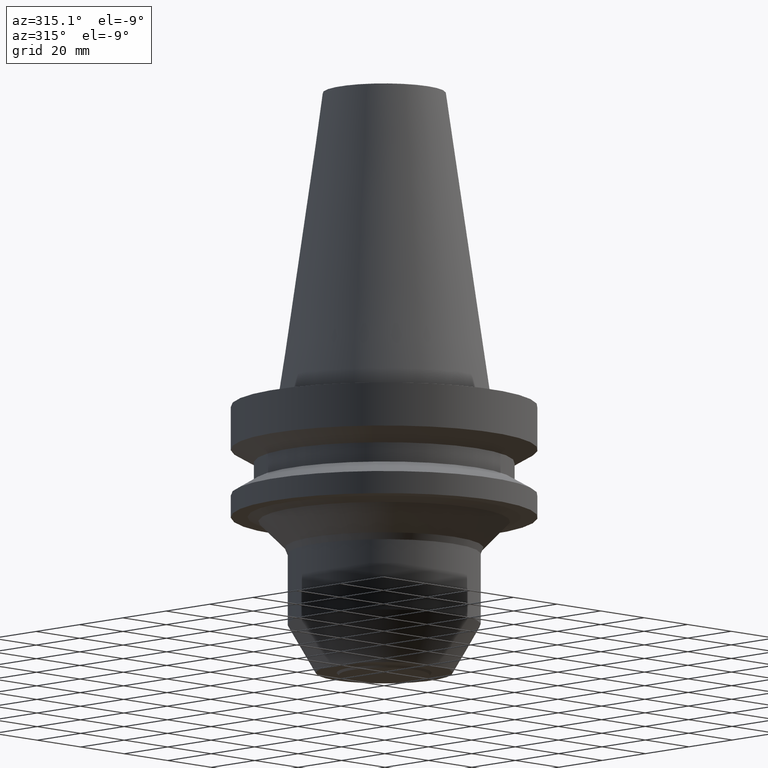
[diagram: clean part render]
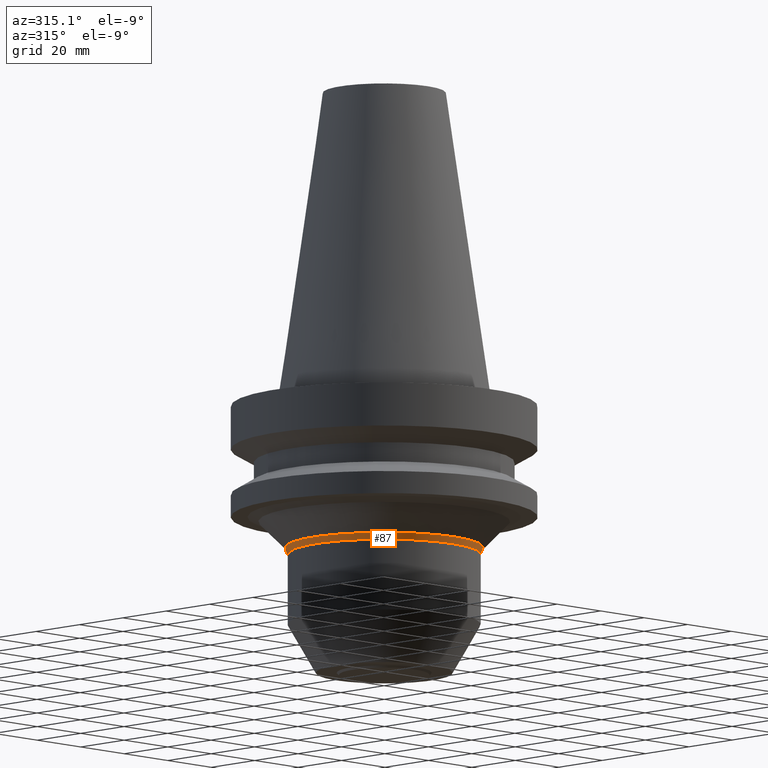
[diagram: same view with one face highlighted and labeled with its STEP entity id]
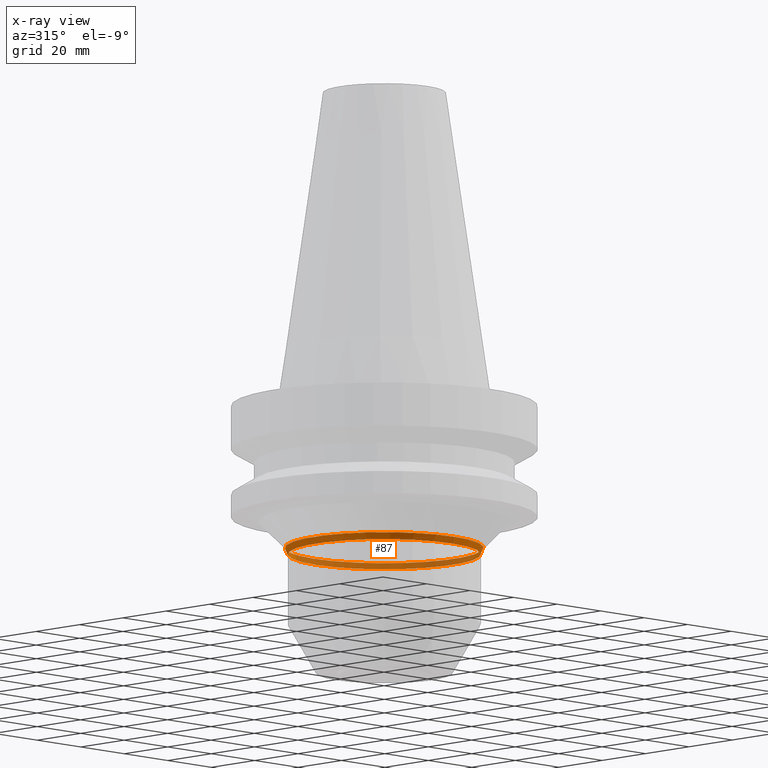
[diagram: x-ray of the same camera — body ghosted, the highlighted face saturated]
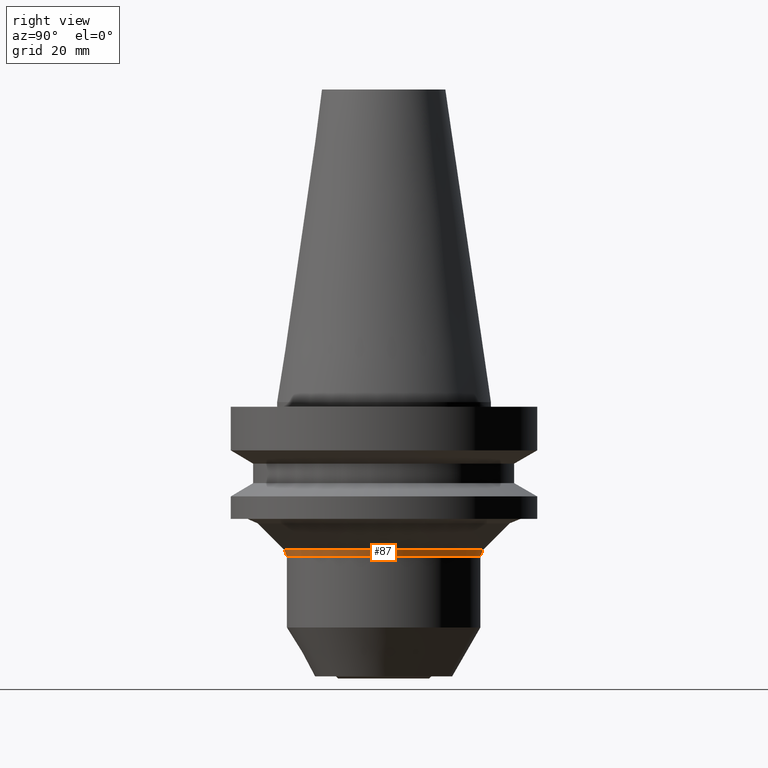
[diagram: same view with one face highlighted and labeled with its STEP entity id]
A machine part, auxiliary view. The second image highlights one B-rep face of the part: STEP entity #87.
The next image is the same camera in x-ray: the body ghosted, the highlighted face saturated — about 42% of this face is hidden behind the body in this view.
A second angle (right view) of the same face is appended — the face is thin or edge-on in the first view.
In plain terms, the highlighted conical surface has half-angle 22.5 deg.
Its self-contained STEP definition (entity closure, byte-faithful):
#87=ADVANCED_FACE('',(#129,#130),#131,.T.);
#129=FACE_BOUND('',#181,.T.);
#130=FACE_BOUND('',#182,.T.);
#131=CONICAL_SURFACE('',#183,31.9393398282197,0.392699081698717);
#181=EDGE_LOOP('',(#257));
#182=EDGE_LOOP('',(#258));
#183=AXIS2_PLACEMENT_3D('',#259,#260,#261);
#257=ORIENTED_EDGE('',*,*,#298,.F.);
#258=ORIENTED_EDGE('',*,*,#297,.T.);
#259=CARTESIAN_POINT('',(3.01152775069179E-015,8.66228268649813E-015,-49.1819805153376));
#260=DIRECTION('',(-6.12323399573677E-017,-6.14340833658534E-017,1.0));
#261=DIRECTION('',(-8.5889054083989E-033,1.0,6.14340833658534E-017));
#297=EDGE_CURVE('',#325,#325,#326,.T.);
#298=EDGE_CURVE('',#327,#327,#328,.T.);
#325=VERTEX_POINT('',#359);
#326=CIRCLE('',#360,32.3786796564399);
#327=VERTEX_POINT('',#361);
#328=CIRCLE('',#362,31.4999999999995);
#359=CARTESIAN_POINT('',(2.94658104647412E-015,32.3786796564399,-48.1213203435577));
#360=AXIS2_PLACEMENT_3D('',#404,#405,#406);
#361=CARTESIAN_POINT('',(3.07647445490945E-015,31.4999999999995,-50.2426406871175));
#362=AXIS2_PLACEMENT_3D('',#407,#408,#409);
#404=CARTESIAN_POINT('',(2.94658104647412E-015,8.59712200108213E-015,-48.1213203435577));
#405=DIRECTION('',(6.12323399573677E-017,6.14340833658688E-017,-1.0));
#406=DIRECTION('',(-8.58890540839328E-033,1.0,6.14340833658688E-017));
#407=CARTESIAN_POINT('',(3.07647445490945E-015,8.72744337191412E-015,-50.2426406871175));
#408=DIRECTION('',(6.12323399573677E-017,6.14340833658375E-017,-1.0));
#409=DIRECTION('',(-8.58890540839328E-033,1.0,6.14340833658375E-017));